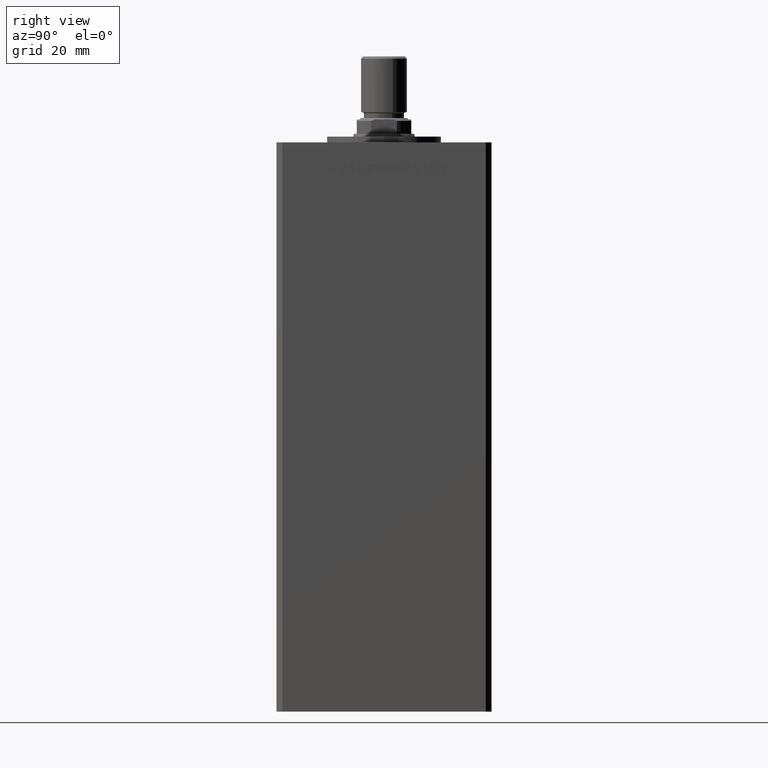
[diagram: clean part render]
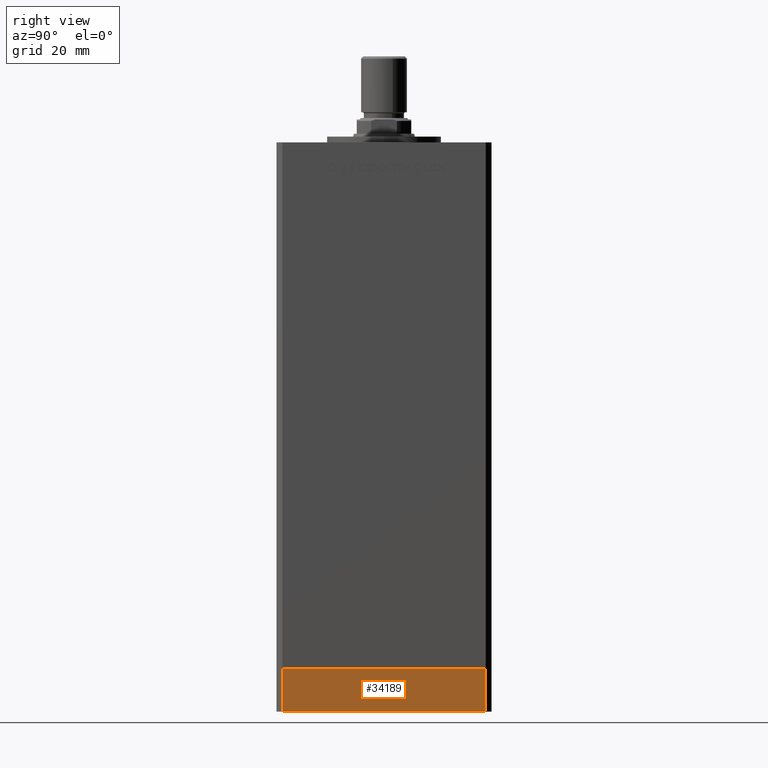
[diagram: same view with one face highlighted and labeled with its STEP entity id]
A machine part, right view. The second image highlights one B-rep face of the part: STEP entity #34189.
In plain terms, the highlighted planar face has unit normal (1, -0, 0).
Its self-contained STEP definition (entity closure, byte-faithful):
#576 = DIRECTION ( 'NONE',  ( 0.000000000000000000, 0.000000000000000000, 1.000000000000000000 ) ) ;
#5711 = CARTESIAN_POINT ( 'NONE',  ( -42.50000000000000711, 35.49999999999997158, -15.00000000000000000 ) ) ;
#6543 = VECTOR ( 'NONE', #34979, 1000.000000000000000 ) ;
#7041 = EDGE_CURVE ( 'NONE', #21461, #38193, #10199, .T. ) ;
#9171 = PLANE ( 'NONE',  #17500 ) ;
#9663 = VECTOR ( 'NONE', #576, 1000.000000000000000 ) ;
#10199 = LINE ( 'NONE', #5711, #28848 ) ;
#10990 = VERTEX_POINT ( 'NONE', #33333 ) ;
#12320 = ORIENTED_EDGE ( 'NONE', *, *, #23357, .T. ) ;
#13799 = LINE ( 'NONE', #50885, #6543 ) ;
#15874 = CARTESIAN_POINT ( 'NONE',  ( -42.50000000000000000, -35.50000000000000711, -15.00000000000000000 ) ) ;
#16590 = DIRECTION ( 'NONE',  ( 9.773090005503140331E-17, -1.000000000000000000, 0.000000000000000000 ) ) ;
#17129 = FACE_OUTER_BOUND ( 'NONE', #33529, .T. ) ;
#17500 = AXIS2_PLACEMENT_3D ( 'NONE', #29588, #36996, #16590 ) ;
#18280 = ORIENTED_EDGE ( 'NONE', *, *, #7041, .T. ) ;
#20190 = CARTESIAN_POINT ( 'NONE',  ( -42.50000000000000000, -35.50000000000000711, -15.00000000000000000 ) ) ;
#21461 = VERTEX_POINT ( 'NONE', #47500 ) ;
#21463 = EDGE_CURVE ( 'NONE', #21461, #10990, #31609, .T. ) ;
#23357 = EDGE_CURVE ( 'NONE', #38193, #30071, #36628, .T. ) ;
#26786 = CARTESIAN_POINT ( 'NONE',  ( -42.50000000000000000, -35.50000000000000711, 0.000000000000000000 ) ) ;
#27100 = CARTESIAN_POINT ( 'NONE',  ( -42.50000000000000711, 35.49999999999997158, -15.00000000000000000 ) ) ;
#28848 = VECTOR ( 'NONE', #42268, 1000.000000000000000 ) ;
#29588 = CARTESIAN_POINT ( 'NONE',  ( -42.50000000000000711, 35.49999999999997158, -15.00000000000000000 ) ) ;
#30071 = VERTEX_POINT ( 'NONE', #26786 ) ;
#31609 = LINE ( 'NONE', #27100, #36700 ) ;
#33333 = CARTESIAN_POINT ( 'NONE',  ( -42.50000000000000711, 35.49999999999997158, 0.000000000000000000 ) ) ;
#33529 = EDGE_LOOP ( 'NONE', ( #43977, #49818, #18280, #12320 ) ) ;
#34189 = ADVANCED_FACE ( 'NONE', ( #17129 ), #9171, .T. ) ;
#34979 = DIRECTION ( 'NONE',  ( 9.773090005503140331E-17, -1.000000000000000000, 0.000000000000000000 ) ) ;
#36628 = LINE ( 'NONE', #20190, #9663 ) ;
#36700 = VECTOR ( 'NONE', #46974, 1000.000000000000000 ) ;
#36996 = DIRECTION ( 'NONE',  ( -1.000000000000000000, -9.773090005503140331E-17, 0.000000000000000000 ) ) ;
#38193 = VERTEX_POINT ( 'NONE', #15874 ) ;
#39636 = EDGE_CURVE ( 'NONE', #10990, #30071, #13799, .T. ) ;
#42268 = DIRECTION ( 'NONE',  ( 9.773090005503140331E-17, -1.000000000000000000, 0.000000000000000000 ) ) ;
#43977 = ORIENTED_EDGE ( 'NONE', *, *, #39636, .F. ) ;
#46974 = DIRECTION ( 'NONE',  ( 0.000000000000000000, 0.000000000000000000, 1.000000000000000000 ) ) ;
#47500 = CARTESIAN_POINT ( 'NONE',  ( -42.50000000000000711, 35.49999999999997158, -15.00000000000000000 ) ) ;
#49818 = ORIENTED_EDGE ( 'NONE', *, *, #21463, .F. ) ;
#50885 = CARTESIAN_POINT ( 'NONE',  ( -42.50000000000000711, 35.49999999999997158, 0.000000000000000000 ) ) ;